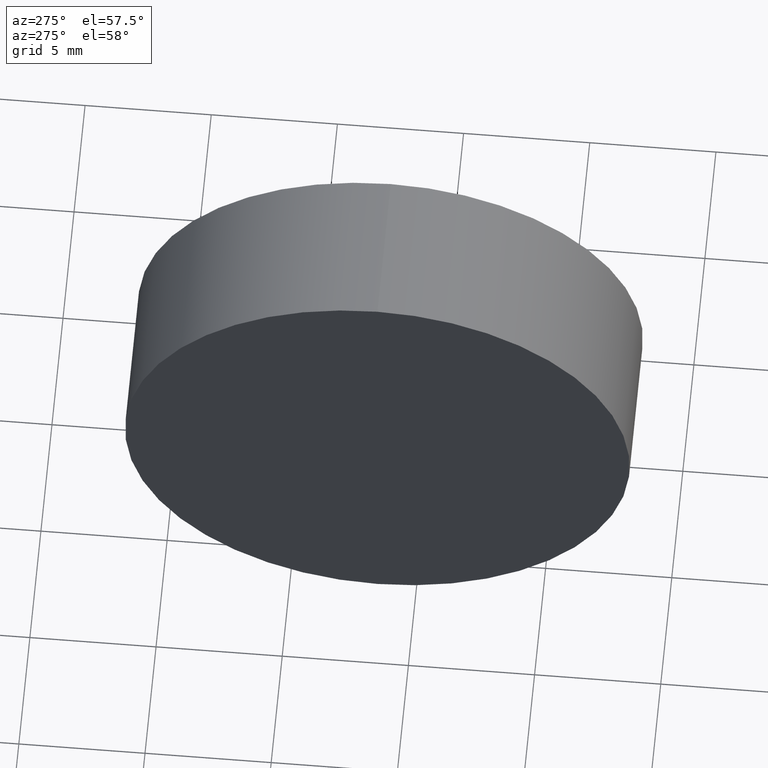
[diagram: clean part render]
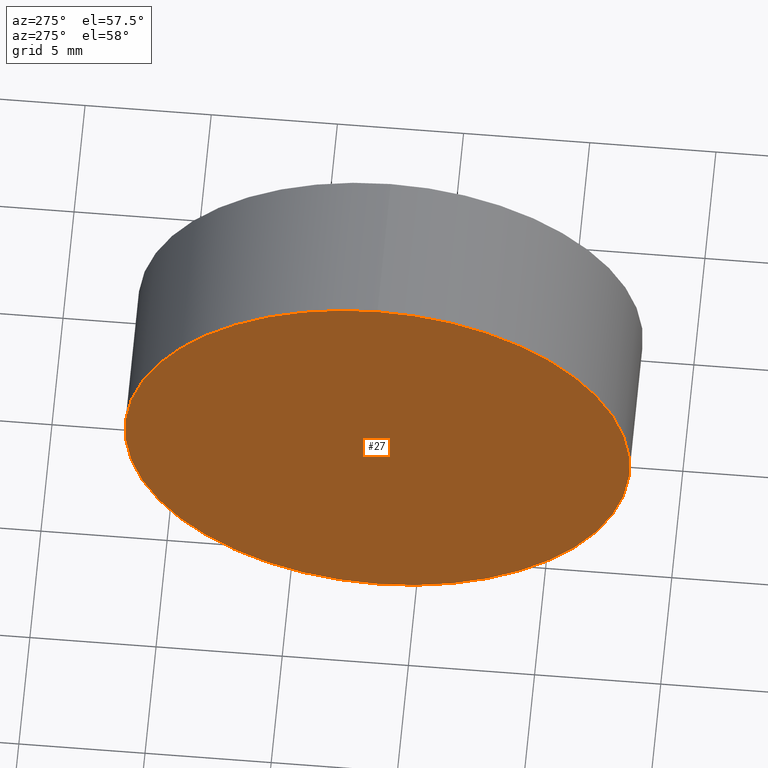
[diagram: same view with one face highlighted and labeled with its STEP entity id]
A machine part, auxiliary view. The second image highlights one B-rep face of the part: STEP entity #27.
In plain terms, the highlighted planar face has unit normal (1, 0, 0).
Its self-contained STEP definition (entity closure, byte-faithful):
#13 = AXIS2_PLACEMENT_3D ( 'NONE', #83, #41, #73 ) ;
#19 = ORIENTED_EDGE ( 'NONE', *, *, #20, .T. ) ;
#20 = EDGE_CURVE ( 'NONE', #113, #78, #32, .T. ) ;
#26 = ORIENTED_EDGE ( 'NONE', *, *, #130, .T. ) ;
#27 = ADVANCED_FACE ( 'NONE', ( #54 ), #127, .F. ) ;
#30 = CARTESIAN_POINT ( 'NONE',  ( 173.4186645331067800, 51.52878618114815600, 0.0000000000000000000 ) ) ;
#32 = CIRCLE ( 'NONE', #79, 9.999999990000000900 ) ;
#41 = DIRECTION ( 'NONE',  ( -1.000000000000000000, -0.0000000000000000000, -0.0000000000000000000 ) ) ;
#45 = CARTESIAN_POINT ( 'NONE',  ( 173.4186645331067800, 51.52878618114815600, 0.0000000000000000000 ) ) ;
#46 = DIRECTION ( 'NONE',  ( 0.0000000000000000000, 0.0000000000000000000, -1.000000000000000000 ) ) ;
#54 = FACE_OUTER_BOUND ( 'NONE', #99, .T. ) ;
#56 = DIRECTION ( 'NONE',  ( 0.0000000000000000000, 0.0000000000000000000, 1.000000000000000000 ) ) ;
#73 = DIRECTION ( 'NONE',  ( 0.0000000000000000000, 0.0000000000000000000, 1.000000000000000000 ) ) ;
#78 = VERTEX_POINT ( 'NONE', #104 ) ;
#79 = AXIS2_PLACEMENT_3D ( 'NONE', #45, #120, #56 ) ;
#83 = CARTESIAN_POINT ( 'NONE',  ( 173.4186645331067800, 51.52878618114815600, 0.0000000000000000000 ) ) ;
#87 = CARTESIAN_POINT ( 'NONE',  ( 173.4186645331067800, 51.52878618114815600, -9.999999990000000900 ) ) ;
#98 = CIRCLE ( 'NONE', #13, 9.999999990000000900 ) ;
#99 = EDGE_LOOP ( 'NONE', ( #26, #19 ) ) ;
#104 = CARTESIAN_POINT ( 'NONE',  ( 173.4186645331067800, 51.52878618114815600, 9.999999990000000900 ) ) ;
#113 = VERTEX_POINT ( 'NONE', #87 ) ;
#120 = DIRECTION ( 'NONE',  ( -1.000000000000000000, -0.0000000000000000000, -0.0000000000000000000 ) ) ;
#125 = AXIS2_PLACEMENT_3D ( 'NONE', #30, #136, #46 ) ;
#127 = PLANE ( 'NONE',  #125 ) ;
#130 = EDGE_CURVE ( 'NONE', #78, #113, #98, .T. ) ;
#136 = DIRECTION ( 'NONE',  ( 1.000000000000000000, 0.0000000000000000000, 0.0000000000000000000 ) ) ;